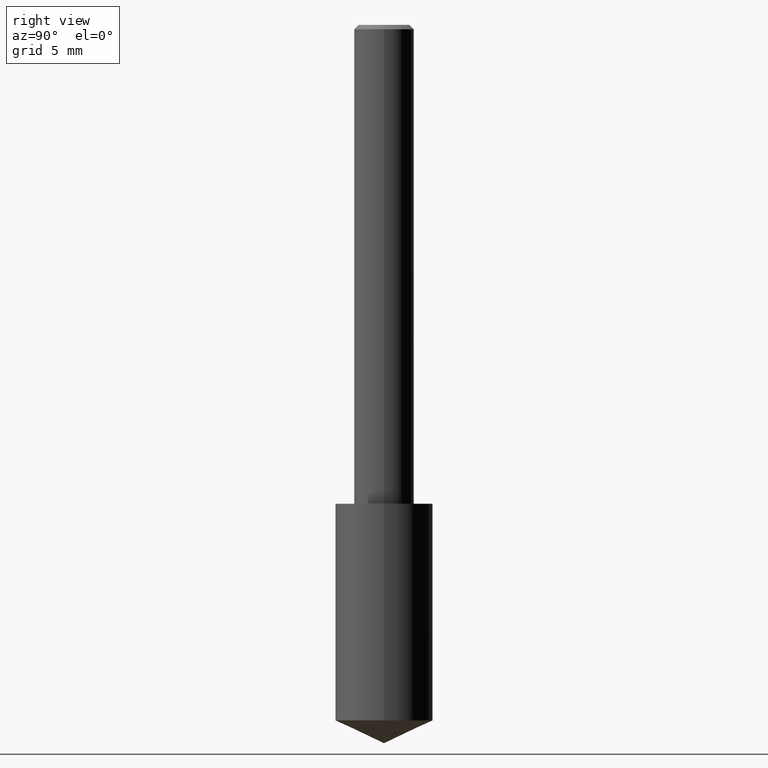
[diagram: clean part render]
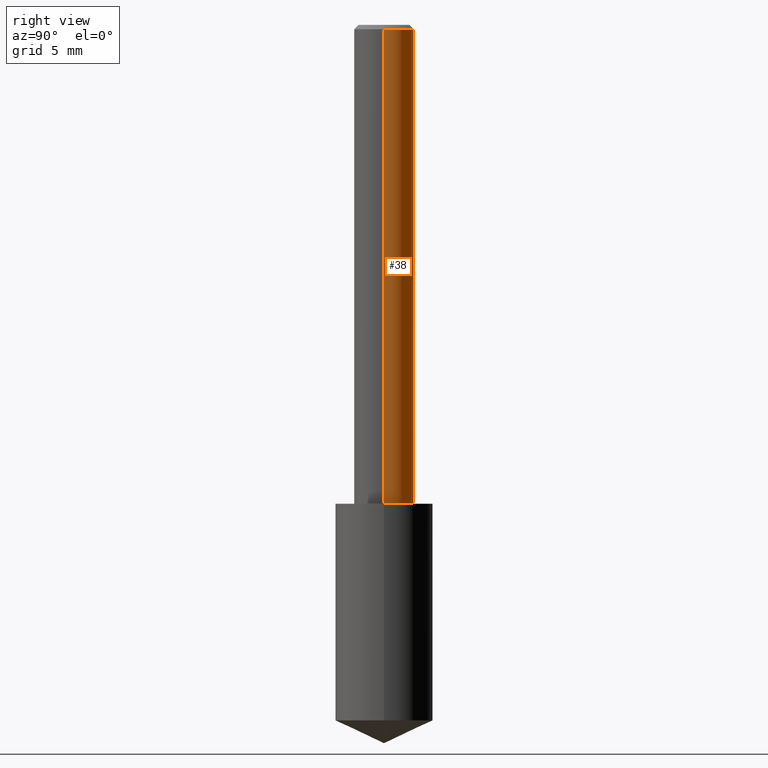
[diagram: same view with one face highlighted and labeled with its STEP entity id]
A machine part, right view. The second image highlights one B-rep face of the part: STEP entity #38.
In plain terms, the highlighted cylindrical surface (edge-blend (fillet) strip) has radius 1.5875 mm, axis along (-0, 0, 1).
Its self-contained STEP definition (entity closure, byte-faithful):
#2 = CIRCLE ( 'NONE', #302, 0.06250000000000012490 ) ;
#7 = CARTESIAN_POINT ( 'NONE',  ( -0.06250000000000012490, -1.318017778347335489E-15, -1.000000000000000222 ) ) ;
#30 = CIRCLE ( 'NONE', #222, 0.06250000000000000000 ) ;
#38 = ADVANCED_FACE ( 'NONE', ( #286 ), #130, .T. ) ;
#41 = LINE ( 'NONE', #123, #147 ) ;
#51 = DIRECTION ( 'NONE',  ( 1.000000000000000000, -6.982962677686266711E-15, 4.876176775795935793E-29 ) ) ;
#73 = EDGE_CURVE ( 'NONE', #279, #303, #41, .T. ) ;
#88 = CARTESIAN_POINT ( 'NONE',  ( -0.06250000000000006939, 4.440892098500631092E-16, -3.074334431409319267E-30 ) ) ;
#89 = CARTESIAN_POINT ( 'NONE',  ( 0.06250000000000012490, -3.927916506198539224E-15, -1.000000000000000222 ) ) ;
#94 = CARTESIAN_POINT ( 'NONE',  ( -0.06250000000000000000, -1.318017778347336672E-15, -0.009375000000000069042 ) ) ;
#95 = AXIS2_PLACEMENT_3D ( 'NONE', #108, #258, #51 ) ;
#108 = CARTESIAN_POINT ( 'NONE',  ( 0.000000000000000000, 0.000000000000000000, 0.000000000000000000 ) ) ;
#114 = DIRECTION ( 'NONE',  ( -2.445468806185136877E-29, 3.491481338843145188E-15, 1.000000000000000000 ) ) ;
#123 = CARTESIAN_POINT ( 'NONE',  ( 0.06250000000000006939, -4.364351673553921624E-16, 3.047610484872463374E-30 ) ) ;
#124 = ORIENTED_EDGE ( 'NONE', *, *, #73, .F. ) ;
#130 = CYLINDRICAL_SURFACE ( 'NONE', #95, 0.06250000000000006939 ) ;
#147 = VECTOR ( 'NONE', #305, 39.37007874015748143 ) ;
#167 = DIRECTION ( 'NONE',  ( -2.445468806185136597E-29, 3.491481338843145583E-15, 1.000000000000000000 ) ) ;
#168 = DIRECTION ( 'NONE',  ( 1.000000000000000000, -6.982962677686264344E-15, 0.000000000000000000 ) ) ;
#169 = DIRECTION ( 'NONE',  ( -2.445468806185136597E-29, 3.491481338843145583E-15, 1.000000000000000000 ) ) ;
#196 = CARTESIAN_POINT ( 'NONE',  ( 2.445468806185137438E-29, -3.491481338843146371E-15, -1.000000000000000222 ) ) ;
#202 = VERTEX_POINT ( 'NONE', #94 ) ;
#217 = DIRECTION ( 'NONE',  ( 1.000000000000000000, -6.982962677686266711E-15, 0.000000000000000000 ) ) ;
#219 = CARTESIAN_POINT ( 'NONE',  ( 0.06250000000000000000, -4.691678049070464390E-16, -0.009375000000000069042 ) ) ;
#222 = AXIS2_PLACEMENT_3D ( 'NONE', #297, #169, #217 ) ;
#240 = EDGE_CURVE ( 'NONE', #304, #202, #269, .T. ) ;
#246 = EDGE_CURVE ( 'NONE', #303, #202, #30, .T. ) ;
#250 = EDGE_LOOP ( 'NONE', ( #282, #281, #252, #124 ) ) ;
#252 = ORIENTED_EDGE ( 'NONE', *, *, #246, .F. ) ;
#256 = VECTOR ( 'NONE', #114, 39.37007874015748143 ) ;
#258 = DIRECTION ( 'NONE',  ( -2.445468806185136597E-29, 3.491481338843145583E-15, 1.000000000000000000 ) ) ;
#269 = LINE ( 'NONE', #88, #256 ) ;
#279 = VERTEX_POINT ( 'NONE', #89 ) ;
#281 = ORIENTED_EDGE ( 'NONE', *, *, #240, .T. ) ;
#282 = ORIENTED_EDGE ( 'NONE', *, *, #299, .T. ) ;
#286 = FACE_OUTER_BOUND ( 'NONE', #250, .T. ) ;
#297 = CARTESIAN_POINT ( 'NONE',  ( 2.292627005798582375E-31, -3.273263755165473266E-17, -0.009375000000000069042 ) ) ;
#299 = EDGE_CURVE ( 'NONE', #279, #304, #2, .T. ) ;
#302 = AXIS2_PLACEMENT_3D ( 'NONE', #196, #167, #168 ) ;
#303 = VERTEX_POINT ( 'NONE', #219 ) ;
#304 = VERTEX_POINT ( 'NONE', #7 ) ;
#305 = DIRECTION ( 'NONE',  ( -2.445468806185136877E-29, 3.491481338843145188E-15, 1.000000000000000000 ) ) ;